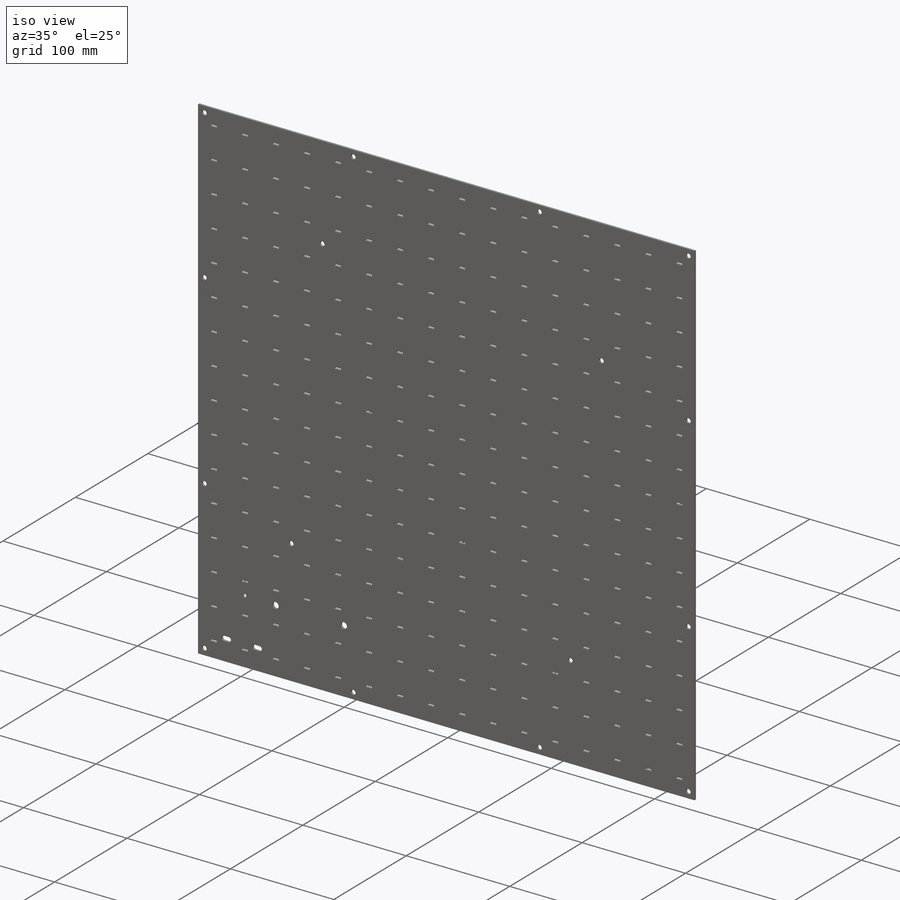
[diagram: iso view]
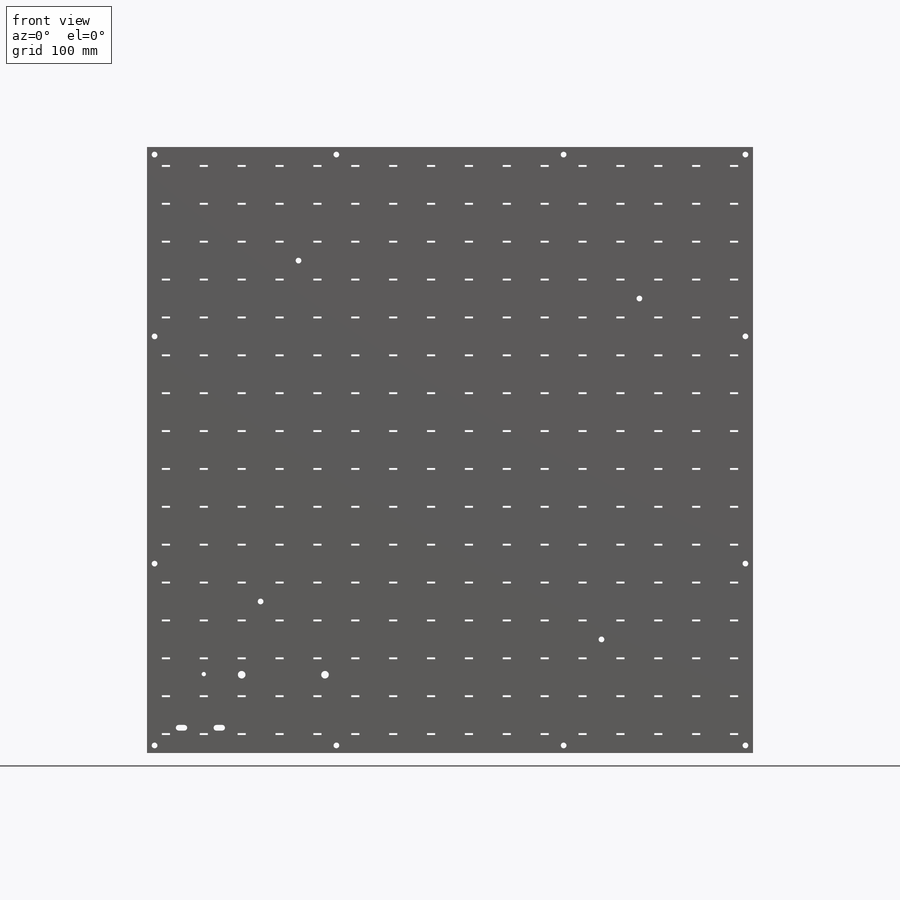
[diagram: front view]
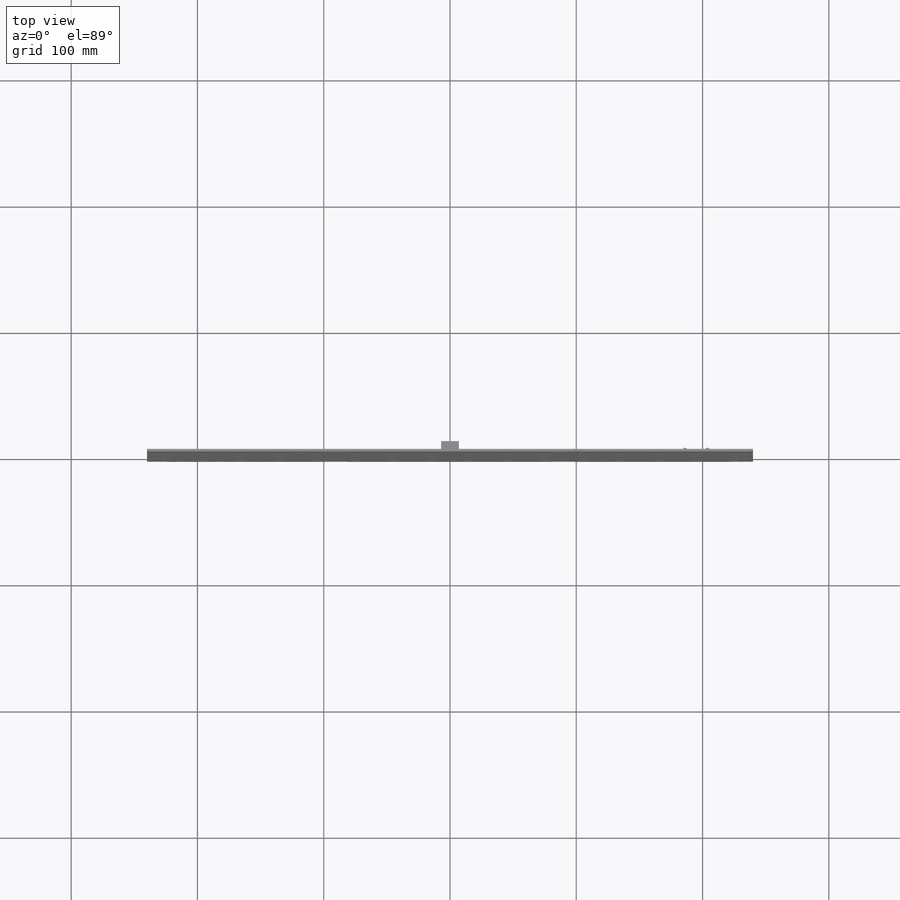
[diagram: top view]
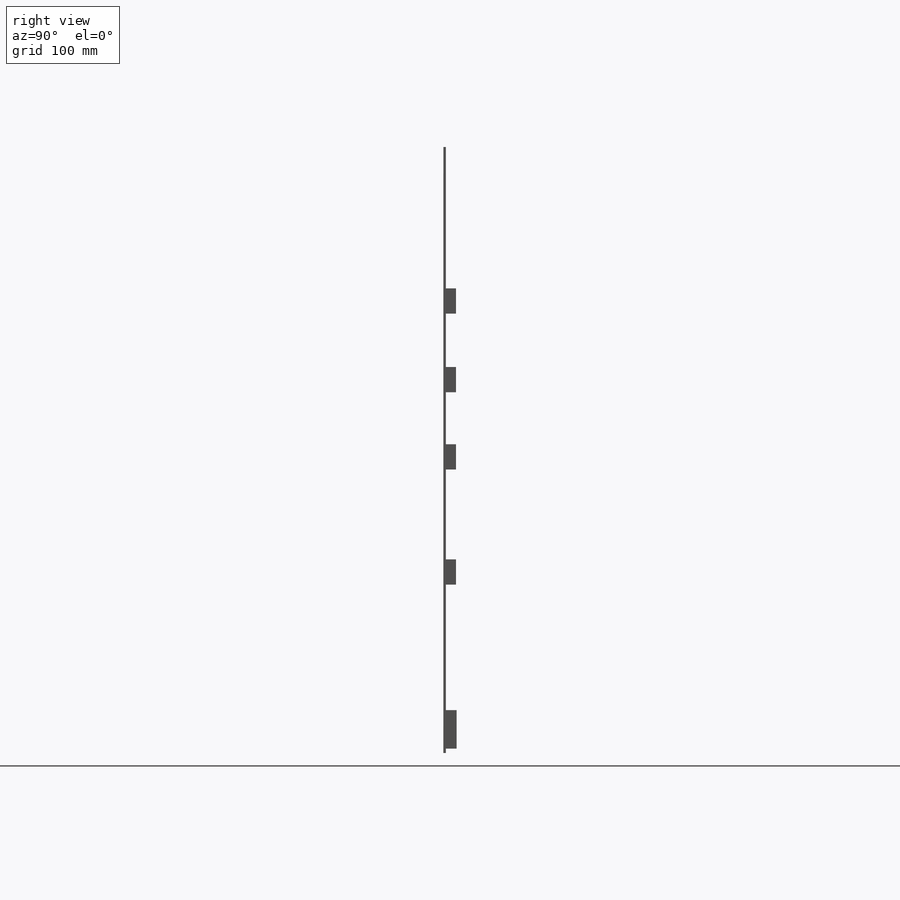
[diagram: right view]
SOLIDWORKS PART (.sldprt)
format: sldprt  version: not decoded by parser v0  size: 2,236,928 bytes
history: native  units: mm
features: sketch x13, cut_extrude x8, extrude x5, pattern_circular x3, pattern_linear x2, mirror x2, material x1 (+16 scaffold rows collapsed)
feature tree (50):
  scaffold x16  (default folders/planes/origin — collapsed)
  material  "Material <not specified>"
  sketch  "Sketch1"  dims[D1=480.0mm]
  extrude  "Boss-Extrude1"  Depth=2mm
  sketch  "Sketch2"  dims[D1=2.0mm D2=10.0mm D3=15.0mm]
  extrude  "Boss-Extrude2"  Depth=1.5mm
  pattern_linear  "LPattern1"  Count1=3 Count2=1 Spacing1=55mm Spacing2=10mm
  pattern_circular  "CirPattern1"  Count=4 Angle=360deg
  sketch  "Sketch3"  dims[c1.D1=4.24mm c1.D2=5.08mm c2.D1=5.08mm]
  extrude  "Boss-Extrude3"  Depth=5.08mm
  sketch  "Sketch4"  dims[D1=4.5mm D2=6.0mm]
  cut_extrude  "Cut-Extrude1"  [1 undecoded]
  sketch  "Sketch6"  dims[D1=21.0mm]
  cut_extrude  "Cut-Extrude3"  Depth=0.1mm
  sketch  "Sketch7"  dims[D1=7.8mm]
  cut_extrude  "Cut-Extrude4"  Depth=0.2mm
  sketch  "Sketch10"  dims[D1=4.5mm D2=180.0mm]
  cut_extrude  "Cut-Extrude7"  [1 undecoded]
  sketch  "Sketch11"  dims[D1=16.0mm D2=13.5mm]
  cut_extrude  "Cut-Extrude8"  Depth=0.1mm
  pattern_circular  "CirPattern2"  Count=2 Angle=90deg
  mirror  "Mirror1"
  mirror  "Mirror2"
  sketch  "Sketch5"  dims[D1=6.5mm D2=1.5mm D3=15.0mm D4=15.0mm]
  cut_extrude  "Cut-Extrude2"  [1 undecoded]
  pattern_linear  "LPattern2"  Count1=16 Count2=16 Spacing1=30mm Spacing2=30mm
  sketch  "Sketch8"  dims[c1.D1=32.0mm c1.D2=45.85mm c2.D1=51.0mm c2.D2=19.431mm c2.D3=25.4mm c2.D4=20.32mm c2.D5=9.144mm c2.D6=20.32mm c2.D7=15.24mm c2.D8=45.85mm c2.D9=2.41mm c2.D10=1.524mm c2.D11=2.54mm c2.D12=15.4mm c2.D13=30.48mm c2.D14=17.81mm c3.D12=17.78mm c3.D14=3.5mm c3.D2=2.4mm]
  sketch  "Sketch12"  dims[D1=14.0mm D2=3.0mm D3=20.0mm D4=115.0mm D5=240.0mm]
  extrude  "Boss-Extrude4"  Depth=8mm
  extrude  "Boss-Extrude5"  Depth=8.5mm
  sketch  "Sketch13"  dims[c1.D1=6.0mm c1.D2=~8.280677mm c1.D3=6.0mm c1.D5=~3.479858mm c1.D6=6.0mm c1.D7=4.5mm c2.D5=4.0mm c2.D8=4.5mm c2.D9=4.5mm c2.D10=4.5mm c2.D11=4.5mm c2.D13=3.4mm c2.D2=66.0mm c2.D3=75.0mm c2.D4=62.0mm c3.D5=25.0mm c3.D6=27.0mm c4.D5=20.0mm c4.D6=32.6mm c4.D9=58.0mm c5.D6=29.9mm c5.D9=42.3mm c5.D12=~27.144851mm c5.D14=45.2mm c5.D15=45.0mm c6.D14=42.5mm]
  cut_extrude  "Cut-Extrude9"  [1 undecoded]
  sketch  "Sketch14"  dims[D1=4.5mm D2=120.0mm D3=90.0mm]
  cut_extrude  "Cut-Extrude10"  [1 undecoded]
  pattern_circular  "CirPattern3"  Count=4 Angle=360deg
decode coverage: 26 of 33 modeling features carry decoded parameters
note: ~ marks probable driven/reference dimensions
note: 5 parameter values undecoded
summary: no parameter record found for 5 features
note: suppression state not decoded; provenance and decode notes live in map.json
